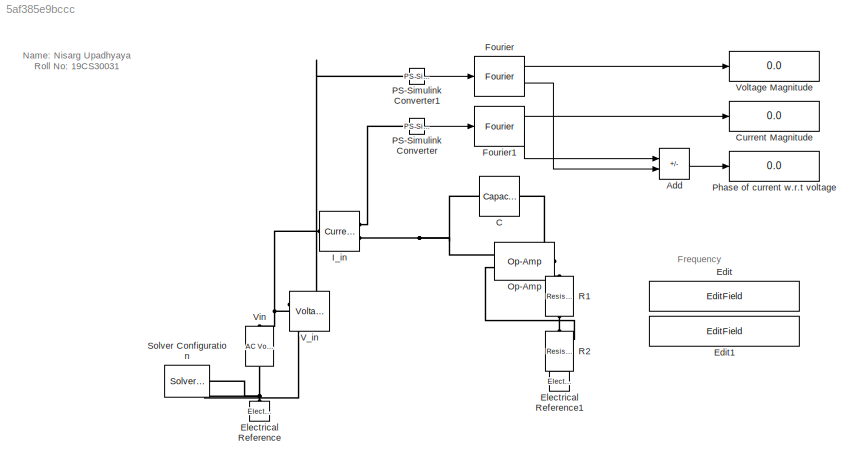
MODEL slx_5af385e9bccc
KIND model
CONFIG AbsTol = auto
CONFIG EnableMultiTasking = off
CONFIG FixedStep = auto
CONFIG MaxStep = auto
CONFIG MinStep = auto
CONFIG RelTol = 1e-3
CONFIG SampleTimeConstraint = Unconstrained
CONFIG Solver = ode23t
CONFIG SolverName = ode23t
CONFIG StartTime = 0.0
CONFIG StopTime = 1
BLOCK [Sum] Add
  IconShape = rectangular
  Inputs = +-
  Ports = [2, 1]
BLOCK [Reference] C  REF=ee_lib/Passive/Capacitor
  Ports = [0, 0, 0, 0, 0, 1, 1]
  SourceBlock = ee_lib/Passive/Capacitor
  SourceProductBaseCode = PS
  SourceType = Capacitor
BLOCK [Display] Current Magnitude
  Decimation = 1
  Ports = [1]
BLOCK [EditField] Edit
  Alignment = Center
  LabelPosition = Hide
  ShowInitialText = on
BLOCK [EditField] Edit1
  Alignment = Center
  LabelPosition = Hide
  ShowInitialText = on
BLOCK [Reference] Electrical Reference  REF=fl_lib/Electrical/Electrical Elements/Electrical Reference
  NameLocation = right
  Ports = [0, 0, 0, 0, 0, 1]
  SourceBlock = fl_lib/Electrical/Electrical Elements/Electrical Reference
  SourceProductBaseCode = SS
  SourceType = Electrical Reference
BLOCK [Reference] Electrical Reference1  REF=fl_lib/Electrical/Electrical Elements/Electrical Reference
  NameLocation = right
  Ports = [0, 0, 0, 0, 0, 1]
  SourceBlock = fl_lib/Electrical/Electrical Elements/Electrical Reference
  SourceProductBaseCode = SS
  SourceType = Electrical Reference
BLOCK [Reference] Fourier  REF=powerlib_meascontrol/Measurements/Fourier
  Ports = [1, 2]
  SourceBlock = powerlib_meascontrol/Measurements/Fourier
  SourceProductBaseCode = PS
  SourceType = Fourier
BLOCK [Reference] Fourier1  REF=powerlib_meascontrol/Measurements/Fourier
  Ports = [1, 2]
  SourceBlock = powerlib_meascontrol/Measurements/Fourier
  SourceProductBaseCode = PS
  SourceType = Fourier
BLOCK [Reference] I_in  REF=fl_lib/Electrical/Electrical Sensors/Current Sensor
  Ports = [0, 0, 0, 0, 0, 1, 2]
  SourceBlock = fl_lib/Electrical/Electrical Sensors/Current Sensor
  SourceProductBaseCode = SS
  SourceType = Current Sensor
BLOCK [Reference] Op-Amp  REF=fl_lib/Electrical/Electrical Elements/Op-Amp
  Ports = [0, 0, 0, 0, 0, 2, 1]
  SourceBlock = fl_lib/Electrical/Electrical Elements/Op-Amp
  SourceProductBaseCode = SS
  SourceType = Op-Amp
BLOCK [Reference] PS-Simulink Converter  REF=nesl_utility/PS-Simulink
Converter
  Ports = [0, 1, 0, 0, 0, 1]
  SourceBlock = nesl_utility/PS-Simulink\nConverter
  SourceProductBaseCode = SS
  SourceType = PS-Simulink\nConverter
BLOCK [Reference] PS-Simulink Converter1  REF=nesl_utility/PS-Simulink
Converter
  Ports = [0, 1, 0, 0, 0, 1]
  SourceBlock = nesl_utility/PS-Simulink\nConverter
  SourceProductBaseCode = SS
  SourceType = PS-Simulink\nConverter
BLOCK [Display] Phase of current w.r.t voltage
  Decimation = 1
  Ports = [1]
BLOCK [Reference] R1  REF=ee_lib/Passive/Resistor
  NameLocation = left
  Ports = [0, 0, 0, 0, 0, 1, 1]
  SourceBlock = ee_lib/Passive/Resistor
  SourceProductBaseCode = PS
  SourceType = Resistor
BLOCK [Reference] R2  REF=ee_lib/Passive/Resistor
  NameLocation = left
  Ports = [0, 0, 0, 0, 0, 1, 1]
  SourceBlock = ee_lib/Passive/Resistor
  SourceProductBaseCode = PS
  SourceType = Resistor
BLOCK [Reference] Solver Configuration  REF=nesl_utility/Solver
Configuration
  Ports = [0, 0, 0, 0, 0, 0, 1]
  SourceBlock = nesl_utility/Solver\nConfiguration
  SourceProductBaseCode = SS
  SourceType = Solver\nConfiguration
BLOCK [Reference] V_in  REF=fl_lib/Electrical/Electrical Sensors/Voltage Sensor
  NameLocation = top
  Ports = [0, 0, 0, 0, 0, 1, 2]
  SourceBlock = fl_lib/Electrical/Electrical Sensors/Voltage Sensor
  SourceProductBaseCode = SS
  SourceType = Voltage Sensor
BLOCK [Reference] Vin  REF=fl_lib/Electrical/Electrical Sources/AC Voltage Source
  NameLocation = right
  Ports = [0, 0, 0, 0, 0, 1, 1]
  SourceBlock = fl_lib/Electrical/Electrical Sources/AC Voltage Source
  SourceProductBaseCode = SS
  SourceType = AC Voltage Source
BLOCK [Display] Voltage Magnitude
  Decimation = 1
  Ports = [1]
ANNOTATION (root): Frequency
ANNOTATION (root): Name: Nisarg Upadhyaya Roll No: 19CS30031
LINE Add:1 -> Phase of current w.r.t voltage:1
LINE Fourier1:1 -> Current Magnitude:1
LINE Fourier1:2 -> Add:1
LINE Fourier:1 -> Voltage Magnitude:1
LINE Fourier:2 -> Add:2
LINE PS-Simulink Converter1:1 -> Fourier:1
LINE PS-Simulink Converter:1 -> Fourier1:1
PNET net1: C:LConn1 -- I_in:RConn2 -- Op-Amp:LConn1
PNET net2: C:RConn1 -- Op-Amp:RConn1 -- R1:LConn1
PLINE Electrical Reference1:LConn1 -- R2:RConn1
PNET net3: Electrical Reference:LConn1 -- Solver Configuration:RConn1 -- V_in:RConn2 -- Vin:RConn1
PNET net4: I_in:LConn1 -- V_in:LConn1 -- Vin:LConn1
PLINE I_in:RConn1 -- PS-Simulink Converter:LConn1
PNET net5: Op-Amp:LConn2 -- R1:RConn1 -- R2:LConn1
PLINE PS-Simulink Converter1:LConn1 -- V_in:RConn1
note: PNET lines group multi-terminal physical nets as a canonical sorted terminal list (undirected conserving connections); 2-terminal nets keep the pairwise PLINE form
